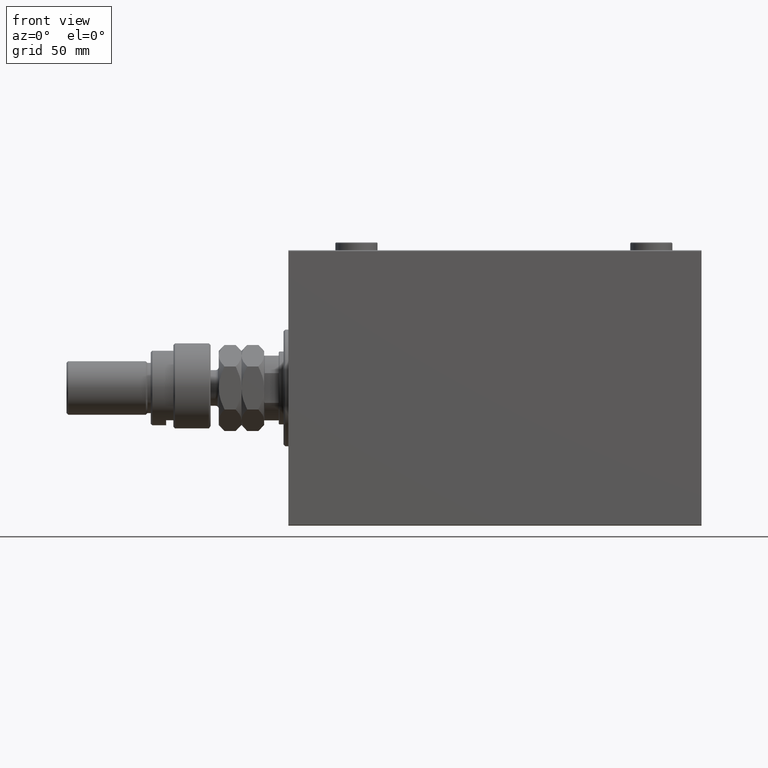
[diagram: clean part render]
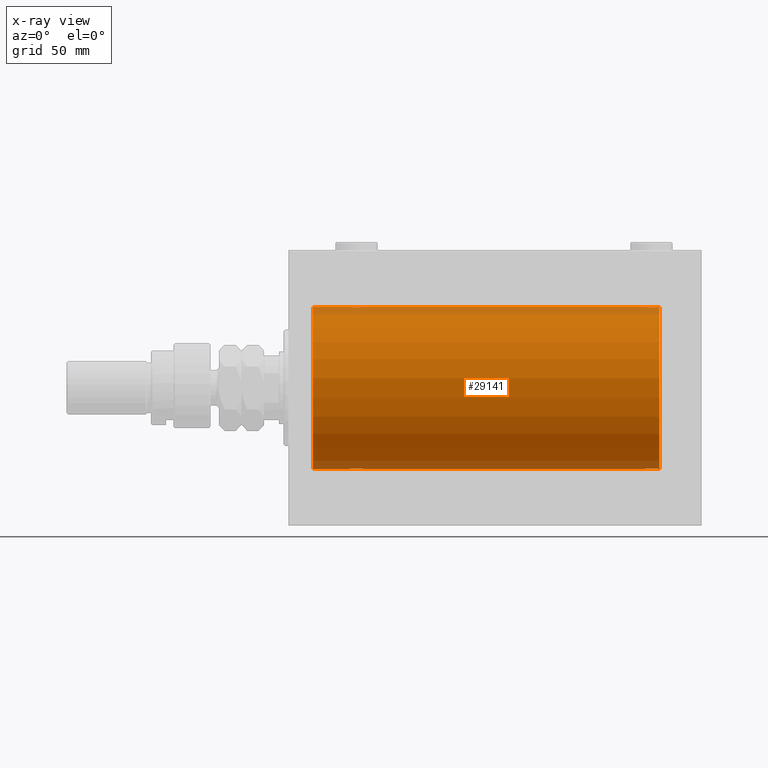
[diagram: x-ray — body ghosted, one internal face saturated and labeled with its STEP entity id]
A machine part, front view, then the same camera in x-ray: the body is ghosted and one INTERNAL B-rep face — a face not visible from any outside direction — is saturated and labeled: STEP entity #29141.
In plain terms, the highlighted cylindrical surface (partial cylindrical patch) has radius 50 mm, axis along (-1, -0, -0).
Its self-contained STEP definition (entity closure, byte-faithful):
#40 = CIRCLE ( 'NONE', #28315, 50.00000000000000000 ) ;
#145 = CARTESIAN_POINT ( 'NONE',  ( 229.0000000000000000, 6.123233995736764507E-15, -50.00000000000000000 ) ) ;
#162 = CARTESIAN_POINT ( 'NONE',  ( 228.1143191330600359, -1.101350136471743069, -49.98862054280448319 ) ) ;
#332 = CARTESIAN_POINT ( 'NONE',  ( 221.4068727911404721, -3.378657745070632767, 49.88595615988430154 ) ) ;
#412 = CARTESIAN_POINT ( 'NONE',  ( 226.8115306651542085, -3.199146701881684596, -49.89793607725460589 ) ) ;
#515 = AXIS2_PLACEMENT_3D ( 'NONE', #40257, #10519, #25510 ) ;
#573 = CARTESIAN_POINT ( 'NONE',  ( 220.1789941801477539, -1.881229021238122856, 49.96525240872482954 ) ) ;
#649 = CARTESIAN_POINT ( 'NONE',  ( 222.9026238212096587, -4.115209769591131383, -49.83039196709102470 ) ) ;
#1036 = EDGE_CURVE ( 'NONE', #3582, #23858, #27923, .T. ) ;
#1050 = CARTESIAN_POINT ( 'NONE',  ( 228.1124970108033949, -1.108337267831494222, 49.98846998601261760 ) ) ;
#1060 = CARTESIAN_POINT ( 'NONE',  ( 43.36710647554575360, -4.033756670430853397, 49.83713703490974467 ) ) ;
#1089 = DIRECTION ( 'NONE',  ( 0.000000000000000000, 0.000000000000000000, 1.000000000000000000 ) ) ;
#1311 = CARTESIAN_POINT ( 'NONE',  ( 45.81839248987871116, -1.886522330773410250, 49.96505190380065642 ) ) ;
#1551 = CARTESIAN_POINT ( 'NONE',  ( 40.11255260607201478, -3.818052230167726879, 49.85412671291930309 ) ) ;
#1635 = VECTOR ( 'NONE', #22132, 1000.000000000000000 ) ;
#1801 = CARTESIAN_POINT ( 'NONE',  ( 38.17899418014773971, -1.881229021238131294, 49.96525240872482954 ) ) ;
#1992 = CARTESIAN_POINT ( 'NONE',  ( 37.75000000000000711, -0.2808785465865692443, -50.00000000000001421 ) ) ;
#2144 = LINE ( 'NONE', #17120, #25623 ) ;
#2529 = CARTESIAN_POINT ( 'NONE',  ( 221.8736835512492576, -3.690299572754756952, -49.86386974736159061 ) ) ;
#3236 = EDGE_CURVE ( 'NONE', #12948, #4939, #41321, .T. ) ;
#3383 = ORIENTED_EDGE ( 'NONE', *, *, #20058, .F. ) ;
#3582 = VERTEX_POINT ( 'NONE', #17206 ) ;
#3774 = CARTESIAN_POINT ( 'NONE',  ( 219.7500000000000284, -2.480257572105383217E-23, 50.00000000000000000 ) ) ;
#3942 = CARTESIAN_POINT ( 'NONE',  ( 229.0000000000000000, 0.000000000000000000, 50.00000000000000000 ) ) ;
#4343 = CARTESIAN_POINT ( 'NONE',  ( 224.2839528702670293, -4.249777379711429326, -49.81906655360197789 ) ) ;
#4433 = DIRECTION ( 'NONE',  ( -1.000000000000000000, 0.000000000000000000, 0.000000000000000000 ) ) ;
#4752 = CARTESIAN_POINT ( 'NONE',  ( 39.40687279114045083, -3.378657745070634544, 49.88595615988430154 ) ) ;
#4917 = CARTESIAN_POINT ( 'NONE',  ( 229.0000000000000000, 0.000000000000000000, 0.000000000000000000 ) ) ;
#4939 = VERTEX_POINT ( 'NONE', #41942 ) ;
#4993 = CARTESIAN_POINT ( 'NONE',  ( 45.68602832121950286, -2.133925816755181337, 49.95498245321556396 ) ) ;
#5134 = VERTEX_POINT ( 'NONE', #19279 ) ;
#5248 = CARTESIAN_POINT ( 'NONE',  ( 46.11249701080335228, -1.108337267831486228, 49.98846998601261760 ) ) ;
#5679 = CARTESIAN_POINT ( 'NONE',  ( 37.88750298919665482, -1.108337267831493556, -49.98846998601261760 ) ) ;
#6166 = CARTESIAN_POINT ( 'NONE',  ( 46.22310752799000255, -0.5531336717328981800, -49.99769193709643389 ) ) ;
#6407 = CARTESIAN_POINT ( 'NONE',  ( 39.87368355124921493, -3.690299572754719648, -49.86386974736159061 ) ) ;
#6645 = CARTESIAN_POINT ( 'NONE',  ( 45.82100581985226029, -1.881229021238118859, -49.96525240872481533 ) ) ;
#7227 = CARTESIAN_POINT ( 'NONE',  ( 226.8069783183931349, -3.203153387937327512, 49.89767833571684008 ) ) ;
#7706 = CARTESIAN_POINT ( 'NONE',  ( 223.4400213230435668, -4.222042462213138947, 49.82145436824653473 ) ) ;
#7946 = CARTESIAN_POINT ( 'NONE',  ( 224.2772492703792011, -4.250219976861659532, 49.81902879621013369 ) ) ;
#8004 = LINE ( 'NONE', #145, #17231 ) ;
#8023 = CARTESIAN_POINT ( 'NONE',  ( 225.1032329603422113, -4.113647494206503552, -49.83052139214891696 ) ) ;
#8115 = DIRECTION ( 'NONE',  ( 0.000000000000000000, 0.000000000000000000, 1.000000000000000000 ) ) ;
#8583 = CARTESIAN_POINT ( 'NONE',  ( 229.0000000000000000, 6.123233995736764507E-15, -50.00000000000000000 ) ) ;
#8672 = CARTESIAN_POINT ( 'NONE',  ( 37.77689247201000455, -0.5531336717329072838, 49.99769193709643389 ) ) ;
#8738 = CARTESIAN_POINT ( 'NONE',  ( 221.1930216816069503, -3.203153387937343499, -49.89767833571684008 ) ) ;
#8916 = CARTESIAN_POINT ( 'NONE',  ( 46.03079796155343217, -1.375411031076034352, 49.98173289062309976 ) ) ;
#9058 = ORIENTED_EDGE ( 'NONE', *, *, #44386, .T. ) ;
#10133 = CARTESIAN_POINT ( 'NONE',  ( 220.8007807203871948, -2.811461347331129179, -49.92127983148851200 ) ) ;
#10310 = ORIENTED_EDGE ( 'NONE', *, *, #42236, .T. ) ;
#10317 = CARTESIAN_POINT ( 'NONE',  ( 39.19302168160691480, -3.203153387937326624, -49.89767833571684008 ) ) ;
#10502 = CIRCLE ( 'NONE', #12076, 50.00000000000000000 ) ;
#10519 = DIRECTION ( 'NONE',  ( -1.000000000000000000, -0.000000000000000000, -0.000000000000000000 ) ) ;
#10901 = CARTESIAN_POINT ( 'NONE',  ( 225.0973761787904550, -4.115209769591120725, 49.83039196709102470 ) ) ;
#11210 = ORIENTED_EDGE ( 'NONE', *, *, #40642, .F. ) ;
#11385 = CARTESIAN_POINT ( 'NONE',  ( 222.6266656342096724, -4.031616700143203502, 49.83731072121799599 ) ) ;
#11464 = CARTESIAN_POINT ( 'NONE',  ( 228.2500000000000568, -0.2773743941468493901, -50.00000000000000711 ) ) ;
#11510 = CARTESIAN_POINT ( 'NONE',  ( 229.0000000000000000, 6.123233995736764507E-15, -50.00000000000000000 ) ) ;
#11622 = CARTESIAN_POINT ( 'NONE',  ( 222.8967670396579024, -4.113647494206499111, 49.83052139214891696 ) ) ;
#11695 = CARTESIAN_POINT ( 'NONE',  ( 226.1313639944615659, -3.687400765141549019, -49.86408552998298660 ) ) ;
#12076 = AXIS2_PLACEMENT_3D ( 'NONE', #4917, #4433, #8115 ) ;
#12416 = CARTESIAN_POINT ( 'NONE',  ( 220.1816075101212959, -1.886522330773437339, -49.96505190380065642 ) ) ;
#12504 = LINE ( 'NONE', #8583, #18461 ) ;
#12852 = CARTESIAN_POINT ( 'NONE',  ( 40.89676703965784554, -4.113647494206489341, 49.83052139214891696 ) ) ;
#12948 = VERTEX_POINT ( 'NONE', #36585 ) ;
#13008 = DIRECTION ( 'NONE',  ( -1.000000000000000000, -0.000000000000000000, -0.000000000000000000 ) ) ;
#13034 = ORIENTED_EDGE ( 'NONE', *, *, #22859, .F. ) ;
#13331 = CARTESIAN_POINT ( 'NONE',  ( 38.62118282736264518, -2.593114840406135713, 49.93325460257641168 ) ) ;
#13353 = CARTESIAN_POINT ( 'NONE',  ( 229.0000000000000000, 0.000000000000000000, 50.00000000000000000 ) ) ;
#13521 = CARTESIAN_POINT ( 'NONE',  ( 45.20303561951989479, -2.807099414226270628, -49.92152599098506016 ) ) ;
#13577 = CARTESIAN_POINT ( 'NONE',  ( 222.6328935244542890, -4.033756670430873825, -49.83713703490974467 ) ) ;
#14003 = CARTESIAN_POINT ( 'NONE',  ( 44.13136399446154456, -3.687400765141527259, -49.86408552998295818 ) ) ;
#14213 = CARTESIAN_POINT ( 'NONE',  ( 14.99999999999998579, 0.000000000000000000, 50.00000000000000000 ) ) ;
#14236 = CARTESIAN_POINT ( 'NONE',  ( 38.31397167878049714, -2.133925816755183114, -49.95498245321555686 ) ) ;
#14877 = VECTOR ( 'NONE', #21677, 1000.000000000000000 ) ;
#15067 = CARTESIAN_POINT ( 'NONE',  ( 220.6211828273626452, -2.593114840406131716, 49.93325460257641168 ) ) ;
#15142 = CARTESIAN_POINT ( 'NONE',  ( 227.8210058198523598, -1.881229021238126409, -49.96525240872482954 ) ) ;
#15313 = CARTESIAN_POINT ( 'NONE',  ( 226.1263164487508277, -3.690299572754730306, 49.86386974736159061 ) ) ;
#15395 = CARTESIAN_POINT ( 'NONE',  ( 226.5931272088596415, -3.378657745070642981, -49.88595615988430154 ) ) ;
#15550 = CARTESIAN_POINT ( 'NONE',  ( 220.3106284432061841, -2.128188802142365166, 49.95522967821975158 ) ) ;
#16038 = VERTEX_POINT ( 'NONE', #11510 ) ;
#16039 = CARTESIAN_POINT ( 'NONE',  ( 44.12631644875080639, -3.690299572754724977, 49.86386974736159772 ) ) ;
#16765 = CARTESIAN_POINT ( 'NONE',  ( 227.6860283212195668, -2.133925816755189775, 49.95498245321557818 ) ) ;
#16777 = CARTESIAN_POINT ( 'NONE',  ( 42.55408564880149669, -4.222816005855215771, 49.82138837911247009 ) ) ;
#16975 = CARTESIAN_POINT ( 'NONE',  ( 37.75000000000000711, -6.867186738287116403E-15, -50.00000000000000000 ) ) ;
#17088 = VERTEX_POINT ( 'NONE', #22675 ) ;
#17120 = CARTESIAN_POINT ( 'NONE',  ( 229.0000000000000000, 6.123233995736764507E-15, -50.00000000000000000 ) ) ;
#17206 = CARTESIAN_POINT ( 'NONE',  ( 46.25000000000000000, 6.123233970928580774E-15, -50.00000000000000000 ) ) ;
#17212 = CARTESIAN_POINT ( 'NONE',  ( 42.55997867695647585, -4.222042462213118519, -49.82145436824654894 ) ) ;
#17231 = VECTOR ( 'NONE', #23237, 1000.000000000000000 ) ;
#17261 = CARTESIAN_POINT ( 'NONE',  ( 221.4117978532380562, -3.382416624899818647, -49.88570010427955737 ) ) ;
#17450 = CARTESIAN_POINT ( 'NONE',  ( 43.37333436579037738, -4.031616700143179521, -49.83731072121799599 ) ) ;
#17697 = VECTOR ( 'NONE', #44504, 1000.000000000000000 ) ;
#18461 = VECTOR ( 'NONE', #13008, 1000.000000000000000 ) ;
#18515 = CARTESIAN_POINT ( 'NONE',  ( 219.9672735790269087, -1.369753890039649091, 49.98188917176553048 ) ) ;
#18563 = ORIENTED_EDGE ( 'NONE', *, *, #1036, .T. ) ;
#18752 = CARTESIAN_POINT ( 'NONE',  ( 219.7500000000000000, -0.2773743941468553853, 50.00000000000000711 ) ) ;
#18996 = CARTESIAN_POINT ( 'NONE',  ( 219.7768924720100472, -0.5531336717329080610, 49.99769193709643389 ) ) ;
#19279 = CARTESIAN_POINT ( 'NONE',  ( 46.25000000000000000, 6.549608351002387256E-15, 50.00000000000000000 ) ) ;
#19331 = CARTESIAN_POINT ( 'NONE',  ( 223.7227507296208842, -4.250219976861668414, -49.81902879621013369 ) ) ;
#19736 = CARTESIAN_POINT ( 'NONE',  ( 40.62666563420964394, -4.031616700143194620, 49.83731072121800310 ) ) ;
#19803 = CARTESIAN_POINT ( 'NONE',  ( 222.1178295051556120, -3.820681512513405931, -49.85392475515401145 ) ) ;
#20058 = EDGE_CURVE ( 'NONE', #16038, #25056, #10502, .T. ) ;
#20165 = ORIENTED_EDGE ( 'NONE', *, *, #26670, .T. ) ;
#20675 = CARTESIAN_POINT ( 'NONE',  ( 37.77757364479218438, -0.5587117664567184949, -49.99763378604801289 ) ) ;
#20968 = CARTESIAN_POINT ( 'NONE',  ( 219.8875029891967188, -1.108337267831515982, -49.98846998601261760 ) ) ;
#21398 = CARTESIAN_POINT ( 'NONE',  ( 39.41179785323800644, -3.382416624899780899, -49.88570010427955737 ) ) ;
#21629 = CARTESIAN_POINT ( 'NONE',  ( 38.62480015918033871, -2.597781786597466613, -49.93300953359121763 ) ) ;
#21677 = DIRECTION ( 'NONE',  ( -1.000000000000000000, -0.000000000000000000, -0.000000000000000000 ) ) ;
#22132 = DIRECTION ( 'NONE',  ( -1.000000000000000000, -0.000000000000000000, -0.000000000000000000 ) ) ;
#22204 = CARTESIAN_POINT ( 'NONE',  ( 227.1992192796128620, -2.811461347331109639, 49.92127983148852621 ) ) ;
#22281 = CARTESIAN_POINT ( 'NONE',  ( 228.0327264209731766, -1.369753890039650646, -49.98188917176553048 ) ) ;
#22675 = CARTESIAN_POINT ( 'NONE',  ( 37.75000000000000711, -2.480809774739037926E-23, 50.00000000000000000 ) ) ;
#22689 = CARTESIAN_POINT ( 'NONE',  ( 225.8821704948444733, -3.820681512513395717, 49.85392475515401145 ) ) ;
#22859 = EDGE_CURVE ( 'NONE', #25056, #44025, #29498, .T. ) ;
#22933 = CARTESIAN_POINT ( 'NONE',  ( 224.5540856488015322, -4.222816005855221100, 49.82138837911247009 ) ) ;
#23007 = CARTESIAN_POINT ( 'NONE',  ( 224.5599786769565469, -4.222042462213146941, -49.82145436824653473 ) ) ;
#23237 = DIRECTION ( 'NONE',  ( -1.000000000000000000, -0.000000000000000000, -0.000000000000000000 ) ) ;
#23419 = CARTESIAN_POINT ( 'NONE',  ( 37.88568086693990722, -1.101350136471746843, 49.98862054280448319 ) ) ;
#23660 = CARTESIAN_POINT ( 'NONE',  ( 45.19921927961284069, -2.811461347331105642, 49.92127983148852621 ) ) ;
#23858 = VERTEX_POINT ( 'NONE', #26003 ) ;
#23908 = CARTESIAN_POINT ( 'NONE',  ( 41.44002132304352415, -4.222042462213131842, 49.82145436824653473 ) ) ;
#24162 = CARTESIAN_POINT ( 'NONE',  ( 43.88217049484444487, -3.820681512513385059, 49.85392475515401145 ) ) ;
#24587 = CARTESIAN_POINT ( 'NONE',  ( 46.25000000000001421, -0.2773743941468467811, -50.00000000000002132 ) ) ;
#24742 = CARTESIAN_POINT ( 'NONE',  ( 228.2500000000000284, 3.884128014896634599E-15, 50.00000000000000000 ) ) ;
#24824 = CARTESIAN_POINT ( 'NONE',  ( 41.44591435119853173, -4.222816005855205113, -49.82138837911246299 ) ) ;
#24878 = CARTESIAN_POINT ( 'NONE',  ( 219.7500000000000853, -0.2808785465865917264, -50.00000000000001421 ) ) ;
#25056 = VERTEX_POINT ( 'NONE', #13353 ) ;
#25062 = CARTESIAN_POINT ( 'NONE',  ( 46.25000000000000000, 6.123233970928580774E-15, -50.00000000000000000 ) ) ;
#25107 = CARTESIAN_POINT ( 'NONE',  ( 229.0000000000000000, 0.000000000000000000, 50.00000000000000000 ) ) ;
#25253 = ORIENTED_EDGE ( 'NONE', *, *, #40171, .T. ) ;
#25266 = CYLINDRICAL_SURFACE ( 'NONE', #515, 50.00000000000000000 ) ;
#25510 = DIRECTION ( 'NONE',  ( 0.000000000000000000, 0.000000000000000000, 1.000000000000000000 ) ) ;
#25562 = EDGE_LOOP ( 'NONE', ( #3383, #30126, #27769, #25253, #18563, #20165, #10310, #11210, #46987, #33350, #9058, #13034 ) ) ;
#25623 = VECTOR ( 'NONE', #35076, 1000.000000000000000 ) ;
#25884 = CARTESIAN_POINT ( 'NONE',  ( 225.3671064755457678, -4.033756670430863167, 49.83713703490974467 ) ) ;
#26003 = CARTESIAN_POINT ( 'NONE',  ( 37.75000000000000711, -6.867186738287116403E-15, -50.00000000000000000 ) ) ;
#26262 = VERTEX_POINT ( 'NONE', #34215 ) ;
#26647 = DIRECTION ( 'NONE',  ( -1.000000000000000000, 0.000000000000000000, 0.000000000000000000 ) ) ;
#26670 = EDGE_CURVE ( 'NONE', #23858, #28501, #12504, .T. ) ;
#26684 = CARTESIAN_POINT ( 'NONE',  ( 225.8874473939280563, -3.818052230167736205, -49.85412671291930309 ) ) ;
#26846 = CARTESIAN_POINT ( 'NONE',  ( 220.7969643804801194, -2.807099414226281286, 49.92152599098507437 ) ) ;
#27072 = CARTESIAN_POINT ( 'NONE',  ( 14.99999999999998579, 6.123233995736764507E-15, -50.00000000000000000 ) ) ;
#27337 = CARTESIAN_POINT ( 'NONE',  ( 37.75000000000000711, -2.480809774739037926E-23, 50.00000000000000000 ) ) ;
#27769 = ORIENTED_EDGE ( 'NONE', *, *, #3236, .T. ) ;
#27806 = VERTEX_POINT ( 'NONE', #14213 ) ;
#27832 = CARTESIAN_POINT ( 'NONE',  ( 42.27724927037918690, -4.250219976861652427, 49.81902879621014080 ) ) ;
#27923 = B_SPLINE_CURVE_WITH_KNOTS ( 'NONE', 3,
 ( #25062, #24587, #6166, #29229, #32926, #6645, #28513, #32694, #13521, #35899, #47213, #14003, #43515, #17450, #43999, #17212, #32446, #39815, #24824, #47697, #47454, #47928, #6407, #21398, #10317, #40296, #21629, #14236, #44239, #39337, #5679, #20675, #1992, #16975 ),
 .UNSPECIFIED., .F., .F.,
 ( 4, 2, 2, 2, 2, 2, 2, 2, 2, 2, 2, 2, 2, 2, 2, 2, 4 ),
 ( 0.01329343152928757002, 0.01412407817529635554, 0.01495472482130513932, 0.01578537146731392310, 0.01661601811332270862, 0.01744666475933149413, 0.01827731140534027965, 0.01910795805134906516, 0.01993860469735784721, 0.02076925134336663273, 0.02159989798937541824, 0.02243054463538420029, 0.02326119128139298581, 0.02409183792740176785, 0.02492248457341054990, 0.02575313121941933542, 0.02658377786542811747 ),
 .UNSPECIFIED. ) ;
#28315 = AXIS2_PLACEMENT_3D ( 'NONE', #34278, #26647, #1089 ) ;
#28501 = VERTEX_POINT ( 'NONE', #27072 ) ;
#28513 = CARTESIAN_POINT ( 'NONE',  ( 45.68937155679385143, -2.128188802142360281, -49.95522967821973737 ) ) ;
#29141 = ADVANCED_FACE ( 'NONE', ( #29675 ), #25266, .F. ) ;
#29229 = CARTESIAN_POINT ( 'NONE',  ( 46.11431913306008568, -1.101350136471737295, -49.98862054280449030 ) ) ;
#29355 = EDGE_CURVE ( 'NONE', #16038, #12948, #2144, .T. ) ;
#29498 = LINE ( 'NONE', #3942, #17697 ) ;
#29675 = FACE_OUTER_BOUND ( 'NONE', #25562, .T. ) ;
#29984 = LINE ( 'NONE', #44991, #1635 ) ;
#30054 = CARTESIAN_POINT ( 'NONE',  ( 221.1884693348458200, -3.199146701881678823, 49.89793607725462010 ) ) ;
#30126 = ORIENTED_EDGE ( 'NONE', *, *, #29355, .T. ) ;
#30134 = CARTESIAN_POINT ( 'NONE',  ( 227.3788171726373264, -2.593114840406136157, -49.93325460257641879 ) ) ;
#31034 = CARTESIAN_POINT ( 'NONE',  ( 44.80697831839310652, -3.203153387937319962, 49.89767833571683298 ) ) ;
#31526 = CARTESIAN_POINT ( 'NONE',  ( 43.09737617879037685, -4.115209769591117173, 49.83039196709103180 ) ) ;
#31766 = CARTESIAN_POINT ( 'NONE',  ( 228.0307979615534748, -1.375411031076043678, 49.98173289062309976 ) ) ;
#31773 = CARTESIAN_POINT ( 'NONE',  ( 41.71604712973302043, -4.249777379711411562, 49.81906655360197789 ) ) ;
#32013 = CARTESIAN_POINT ( 'NONE',  ( 37.75000000000000711, -0.2773743941468536089, 50.00000000000000000 ) ) ;
#32446 = CARTESIAN_POINT ( 'NONE',  ( 42.28395287026698668, -4.249777379711400016, -49.81906655360198499 ) ) ;
#32506 = CARTESIAN_POINT ( 'NONE',  ( 220.3139716787804332, -2.133925816755204874, -49.95498245321555686 ) ) ;
#32694 = CARTESIAN_POINT ( 'NONE',  ( 45.37881717263736192, -2.593114840406123722, -49.93325460257639037 ) ) ;
#32926 = CARTESIAN_POINT ( 'NONE',  ( 46.03272642097309841, -1.369753890039645761, -49.98188917176552337 ) ) ;
#33350 = ORIENTED_EDGE ( 'NONE', *, *, #39455, .F. ) ;
#33510 = CARTESIAN_POINT ( 'NONE',  ( 221.8686360055384910, -3.687400765141541026, 49.86408552998298660 ) ) ;
#33753 = CARTESIAN_POINT ( 'NONE',  ( 219.8856808669399356, -1.101350136471747510, 49.98862054280448319 ) ) ;
#34215 = CARTESIAN_POINT ( 'NONE',  ( 219.7500000000000284, -2.480257572105383217E-23, 50.00000000000000000 ) ) ;
#34278 = CARTESIAN_POINT ( 'NONE',  ( 14.99999999999998579, 0.000000000000000000, 0.000000000000000000 ) ) ;
#34318 = CARTESIAN_POINT ( 'NONE',  ( 223.4459143511985246, -4.222816005855230870, -49.82138837911247009 ) ) ;
#35041 = CARTESIAN_POINT ( 'NONE',  ( 219.9692020384465820, -1.375411031076060331, -49.98173289062309976 ) ) ;
#35076 = DIRECTION ( 'NONE',  ( -1.000000000000000000, -0.000000000000000000, -0.000000000000000000 ) ) ;
#35455 = CARTESIAN_POINT ( 'NONE',  ( 228.2500000000000568, -0.2808785465865649145, 50.00000000000001421 ) ) ;
#35826 = B_SPLINE_CURVE_WITH_KNOTS ( 'NONE', 3,
 ( #3774, #18752, #18996, #33753, #18515, #573, #15550, #15067, #26846, #30054, #332, #33510, #41852, #11385, #11622, #7706, #44582, #7946, #22933, #10901, #25884, #22689, #15313, #37920, #7227, #22204, #37198, #16765, #46278, #31766, #1050, #42330, #35455, #43072 ),
 .UNSPECIFIED., .F., .F.,
 ( 4, 2, 2, 2, 2, 2, 2, 2, 2, 2, 2, 2, 2, 2, 2, 2, 4 ),
 ( 0.01329343152928753879, 0.01412407817529632258, 0.01495472482130510636, 0.01578537146731389187, 0.01661601811332267392, 0.01744666475933145944, 0.01827731140534024495, 0.01910795805134903047, 0.01993860469735781252, 0.02076925134336659456, 0.02159989798937538008, 0.02243054463538416560, 0.02326119128139295111, 0.02409183792740173316, 0.02492248457341051868, 0.02575313121941930072, 0.02658377786542808624 ),
 .UNSPECIFIED. ) ;
#35899 = CARTESIAN_POINT ( 'NONE',  ( 44.81153066515419425, -3.199146701881665500, -49.89793607725460589 ) ) ;
#36191 = CARTESIAN_POINT ( 'NONE',  ( 46.25000000000000000, 6.549608351002387256E-15, 50.00000000000000000 ) ) ;
#36585 = CARTESIAN_POINT ( 'NONE',  ( 228.2500000000000284, 6.123233970934102801E-15, -50.00000000000000000 ) ) ;
#37198 = CARTESIAN_POINT ( 'NONE',  ( 227.3751998408197039, -2.597781786597475495, 49.93300953359122474 ) ) ;
#37277 = CARTESIAN_POINT ( 'NONE',  ( 227.6893715567939580, -2.128188802142370495, -49.95522967821975158 ) ) ;
#37758 = CARTESIAN_POINT ( 'NONE',  ( 228.2231075279900381, -0.5531336717329033981, -49.99769193709643389 ) ) ;
#37920 = CARTESIAN_POINT ( 'NONE',  ( 226.5882021467620859, -3.382416624899788893, 49.88570010427955737 ) ) ;
#38001 = CARTESIAN_POINT ( 'NONE',  ( 227.2030356195199658, -2.807099414226289280, -49.92152599098506727 ) ) ;
#38401 = CARTESIAN_POINT ( 'NONE',  ( 38.79696438048009099, -2.807099414226282175, 49.92152599098506727 ) ) ;
#38471 = CARTESIAN_POINT ( 'NONE',  ( 220.6248001591803813, -2.597781786597489706, -49.93300953359122474 ) ) ;
#38717 = CARTESIAN_POINT ( 'NONE',  ( 219.7500000000000284, -2.307503314381865081E-14, -50.00000000000000000 ) ) ;
#38904 = CARTESIAN_POINT ( 'NONE',  ( 45.37519984081966840, -2.597781786597467057, 49.93300953359123184 ) ) ;
#39337 = CARTESIAN_POINT ( 'NONE',  ( 37.96920203844657493, -1.375411031076047230, -49.98173289062308555 ) ) ;
#39455 = EDGE_CURVE ( 'NONE', #26262, #5134, #29984, .T. ) ;
#39815 = CARTESIAN_POINT ( 'NONE',  ( 41.72275072962081310, -4.250219976861640880, -49.81902879621016211 ) ) ;
#40171 = EDGE_CURVE ( 'NONE', #4939, #3582, #8004, .T. ) ;
#40257 = CARTESIAN_POINT ( 'NONE',  ( 229.0000000000000000, 0.000000000000000000, 0.000000000000000000 ) ) ;
#40296 = CARTESIAN_POINT ( 'NONE',  ( 38.80078072038718062, -2.811461347331114524, -49.92127983148851200 ) ) ;
#40642 = EDGE_CURVE ( 'NONE', #17088, #27806, #43802, .T. ) ;
#41321 = B_SPLINE_CURVE_WITH_KNOTS ( 'NONE', 3,
 ( #45868, #11464, #37758, #162, #22281, #15142, #37277, #30134, #38001, #412, #15395, #11695, #26684, #41687, #8023, #23007, #4343, #19331, #34318, #649, #13577, #19803, #2529, #17261, #8738, #10133, #38471, #32506, #12416, #35041, #20968, #46114, #24878, #38717 ),
 .UNSPECIFIED., .F., .F.,
 ( 4, 2, 2, 2, 2, 2, 2, 2, 2, 2, 2, 2, 2, 2, 2, 2, 4 ),
 ( 0.01329343152928757002, 0.01412407817529635727, 0.01495472482130514279, 0.01578537146731393004, 0.01661601811332271555, 0.01744666475933150107, 0.01827731140534029006, 0.01910795805134907557, 0.01993860469735786456, 0.02076925134336665008, 0.02159989798937543559, 0.02243054463538422111, 0.02326119128139301009, 0.02409183792740179561, 0.02492248457341058460, 0.02575313121941937011, 0.02658377786542815563 ),
 .UNSPECIFIED. ) ;
#41687 = CARTESIAN_POINT ( 'NONE',  ( 225.3733343657904697, -4.031616700143205279, -49.83731072121799599 ) ) ;
#41852 = CARTESIAN_POINT ( 'NONE',  ( 222.1125526060720290, -3.818052230167736649, 49.85412671291929598 ) ) ;
#41942 = CARTESIAN_POINT ( 'NONE',  ( 219.7500000000000284, -2.307503314381865081E-14, -50.00000000000000000 ) ) ;
#42057 = B_SPLINE_CURVE_WITH_KNOTS ( 'NONE', 3,
 ( #27337, #32013, #8672, #23419, #42338, #1801, #47022, #13331, #38401, #42588, #4752, #42837, #1551, #19736, #12852, #23908, #31773, #27832, #16777, #31526, #1060, #24162, #16039, #46287, #31034, #23660, #38904, #4993, #1311, #8916, #5248, #43815, #47265, #36191 ),
 .UNSPECIFIED., .F., .F.,
 ( 4, 2, 2, 2, 2, 2, 2, 2, 2, 2, 2, 2, 2, 2, 2, 2, 4 ),
 ( 0.01329343152928758910, 0.01412407817529637635, 0.01495472482130516534, 0.01578537146731395432, 0.01661601811332274331, 0.01744666475933152883, 0.01827731140534032128, 0.01910795805134910680, 0.01993860469735789578, 0.02076925134336668477, 0.02159989798937547029, 0.02243054463538425927, 0.02326119128139304826, 0.02409183792740183377, 0.02492248457341062276, 0.02575313121941941175, 0.02658377786542820073 ),
 .UNSPECIFIED. ) ;
#42236 = EDGE_CURVE ( 'NONE', #28501, #27806, #40, .T. ) ;
#42330 = CARTESIAN_POINT ( 'NONE',  ( 228.2224263552078014, -0.5587117664567151643, 49.99763378604802000 ) ) ;
#42338 = CARTESIAN_POINT ( 'NONE',  ( 37.96727357902688738, -1.369753890039657085, 49.98188917176553048 ) ) ;
#42588 = CARTESIAN_POINT ( 'NONE',  ( 39.18846933484581996, -3.199146701881677934, 49.89793607725461300 ) ) ;
#42837 = CARTESIAN_POINT ( 'NONE',  ( 39.86863600553845544, -3.687400765141540138, 49.86408552998298660 ) ) ;
#43072 = CARTESIAN_POINT ( 'NONE',  ( 228.2500000000000284, 3.884128014896634599E-15, 50.00000000000000000 ) ) ;
#43515 = CARTESIAN_POINT ( 'NONE',  ( 43.88744739392798522, -3.818052230167713113, -49.85412671291930309 ) ) ;
#43802 = LINE ( 'NONE', #25107, #14877 ) ;
#43815 = CARTESIAN_POINT ( 'NONE',  ( 46.22242635520782272, -0.5587117664567085029, 49.99763378604804132 ) ) ;
#43999 = CARTESIAN_POINT ( 'NONE',  ( 43.10323296034216156, -4.113647494206477795, -49.83052139214893117 ) ) ;
#44025 = VERTEX_POINT ( 'NONE', #24742 ) ;
#44239 = CARTESIAN_POINT ( 'NONE',  ( 38.18160751012128884, -1.886522330773421574, -49.96505190380066352 ) ) ;
#44386 = EDGE_CURVE ( 'NONE', #26262, #44025, #35826, .T. ) ;
#44504 = DIRECTION ( 'NONE',  ( -1.000000000000000000, -0.000000000000000000, -0.000000000000000000 ) ) ;
#44582 = CARTESIAN_POINT ( 'NONE',  ( 223.7160471297330560, -4.249777379711418668, 49.81906655360197789 ) ) ;
#44991 = CARTESIAN_POINT ( 'NONE',  ( 229.0000000000000000, 0.000000000000000000, 50.00000000000000000 ) ) ;
#45868 = CARTESIAN_POINT ( 'NONE',  ( 228.2500000000000284, 6.123233970934102801E-15, -50.00000000000000000 ) ) ;
#46114 = CARTESIAN_POINT ( 'NONE',  ( 219.7775736447922270, -0.5587117664567382569, -49.99763378604802710 ) ) ;
#46278 = CARTESIAN_POINT ( 'NONE',  ( 227.8183924898787609, -1.886522330773421574, 49.96505190380066352 ) ) ;
#46287 = CARTESIAN_POINT ( 'NONE',  ( 44.58820214676201488, -3.382416624899783120, 49.88570010427955737 ) ) ;
#46963 = EDGE_CURVE ( 'NONE', #17088, #5134, #42057, .T. ) ;
#46987 = ORIENTED_EDGE ( 'NONE', *, *, #46963, .T. ) ;
#47022 = CARTESIAN_POINT ( 'NONE',  ( 38.31062844320614857, -2.128188802142370495, 49.95522967821975868 ) ) ;
#47213 = CARTESIAN_POINT ( 'NONE',  ( 44.59312720885954917, -3.378657745070622997, -49.88595615988429444 ) ) ;
#47265 = CARTESIAN_POINT ( 'NONE',  ( 46.25000000000004974, -0.2808785465865676345, 50.00000000000002842 ) ) ;
#47454 = CARTESIAN_POINT ( 'NONE',  ( 40.63289352445426772, -4.033756670430847180, -49.83713703490975888 ) ) ;
#47697 = CARTESIAN_POINT ( 'NONE',  ( 40.90262382120963736, -4.115209769591108291, -49.83039196709104601 ) ) ;
#47928 = CARTESIAN_POINT ( 'NONE',  ( 40.11782950515556934, -3.820681512513380618, -49.85392475515399724 ) ) ;